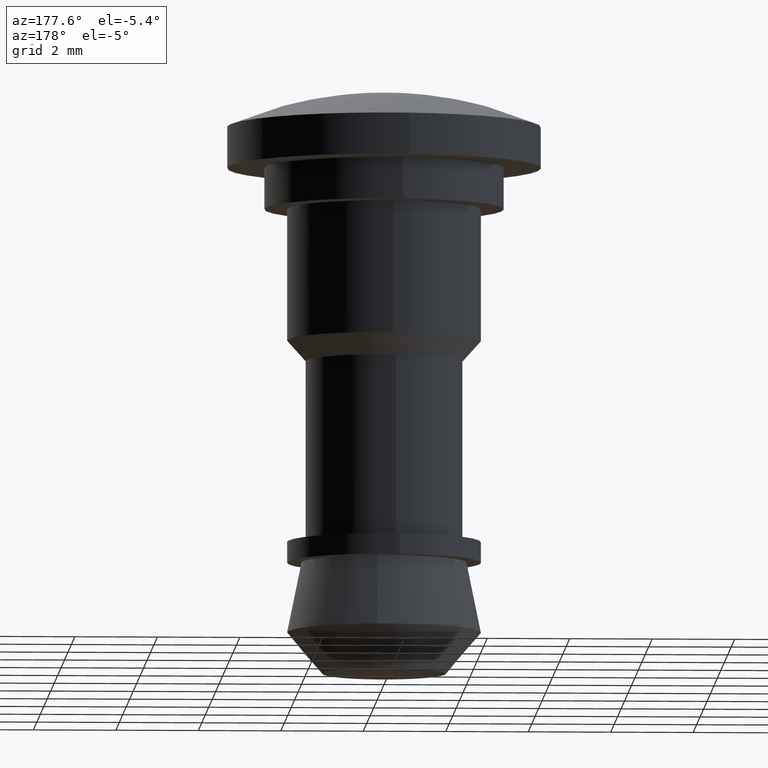
[diagram: clean part render]
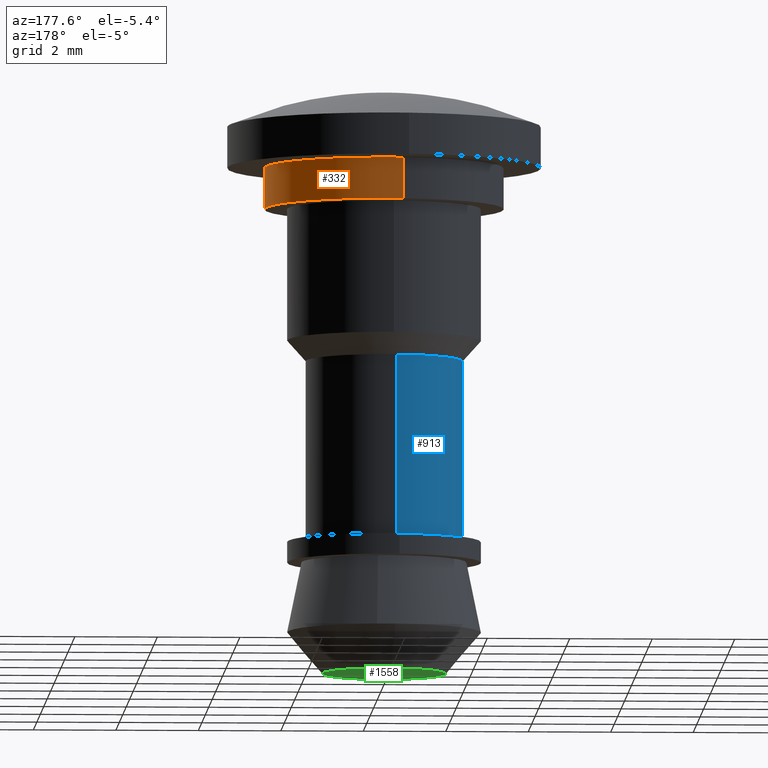
[diagram: same view with three faces highlighted in distinct colors, each labeled with its STEP entity id]
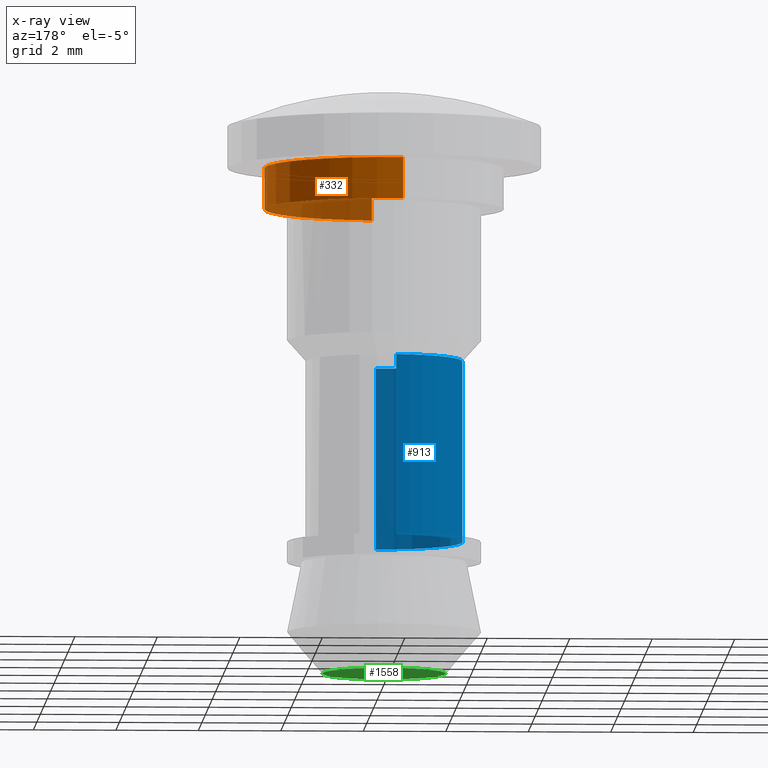
[diagram: x-ray of the same camera — body ghosted, the three highlighted faces saturated]
A machine part, auxiliary view with three faces highlighted in distinct colors.
The next image is the same camera in x-ray (body ghosted, the three faces saturated) — at least one of them is partly hidden behind the body in this view.
Their STEP definitions:

[orange] entity #332 — the highlighted face is a freeform B-spline surface patch.
#230=CARTESIAN_POINT('',(-0.342299280504600,2.879727626454632,1.025000000000000));
#231=CARTESIAN_POINT('',(-0.259882713050135,2.889524084800957,1.025000000000000));
#232=CARTESIAN_POINT('',(-0.177040764651085,2.894590915423414,1.025000000000000));
#233=CARTESIAN_POINT('',(2.717550150772328,3.071631680074499,1.025000000000000));
#234=CARTESIAN_POINT('',(2.894590915423414,0.177040764651085,1.025000000000000));
#235=CARTESIAN_POINT('',(3.071631680074499,-2.717550150772328,1.025000000000000));
#236=CARTESIAN_POINT('',(0.177040764651085,-2.894590915423414,1.025000000000000));
#237=CARTESIAN_POINT('',(-0.342299280504600,2.879727626454632,-0.025625000000000));
#238=CARTESIAN_POINT('',(-0.259882713050135,2.889524084800957,-0.025625000000000));
#239=CARTESIAN_POINT('',(-0.177040764651085,2.894590915423414,-0.025625000000000));
#240=CARTESIAN_POINT('',(2.717550150772328,3.071631680074499,-0.025625000000000));
#241=CARTESIAN_POINT('',(2.894590915423414,0.177040764651085,-0.025625000000000));
#242=CARTESIAN_POINT('',(3.071631680074499,-2.717550150772328,-0.025625000000000));
#243=CARTESIAN_POINT('',(0.177040764651085,-2.894590915423414,-0.025625000000000));
#251=(BOUNDED_SURFACE()B_SPLINE_SURFACE(2,1,((#230,#237),(#231,#238),(#232,#239),(#233,#240),(#234,#241),(#235,#242),(#236,#243)),.UNSPECIFIED.,.F.,.F.,.U.)B_SPLINE_SURFACE_WITH_KNOTS((3,2,2,3),(2,2),(0.0,0.192195092941116,4.997072416469019,9.801949739996921),(0.0,1.0),.UNSPECIFIED.)GEOMETRIC_REPRESENTATION_ITEM()RATIONAL_B_SPLINE_SURFACE(((0.977505800795127,0.977505800795127),(0.988284271247462,0.988284271247462),(1.0,1.0),(0.707106781186548,0.707106781186548),(1.0,1.0),(0.707106781186548,0.707106781186548),(1.0,1.0)))REPRESENTATION_ITEM('')SURFACE());
#252=CARTESIAN_POINT('',(-0.342299040128431,2.879727655026963,0.999999999999999));
#253=VERTEX_POINT('',#252);
#254=CARTESIAN_POINT('',(2.900000000000000,0.0,1.0));
#255=VERTEX_POINT('',#254);
#256=CARTESIAN_POINT('',(-0.342299040128431,2.879727655026963,0.999999999999999));
#257=CARTESIAN_POINT('',(-0.171749704073148,2.900000000000000,1.0));
#258=CARTESIAN_POINT('',(0.0,2.900000000000000,1.0));
#259=CARTESIAN_POINT('',(2.900000000000000,2.900000000000000,1.0));
#260=CARTESIAN_POINT('',(2.900000000000000,0.0,1.0));
#268=(BOUNDED_CURVE()B_SPLINE_CURVE(2,(#256,#257,#258,#259,#260),.UNSPECIFIED.,.F.,.U.)B_SPLINE_CURVE_WITH_KNOTS((3,2,3),(0.229562501729670,0.250000000000000,0.500000000000000),.UNSPECIFIED.)CURVE()GEOMETRIC_REPRESENTATION_ITEM()RATIONAL_B_SPLINE_CURVE((0.956026809488538,0.976055981388435,1.0,0.707106781186548,1.0))REPRESENTATION_ITEM(''));
#269=EDGE_CURVE('',#253,#255,#268,.T.);
#270=ORIENTED_EDGE('',*,*,#269,.T.);
#271=CARTESIAN_POINT('',(0.177038406045388,-2.894591059679989,1.000000000000037));
#272=VERTEX_POINT('',#271);
#273=CARTESIAN_POINT('',(2.900000000000000,0.0,1.0));
#274=CARTESIAN_POINT('',(2.900000000000001,-2.728049821082012,1.0));
#275=CARTESIAN_POINT('',(0.177038406045388,-2.894591059679989,1.000000000000037));
#283=(BOUNDED_CURVE()B_SPLINE_CURVE(2,(#273,#274,#275),.UNSPECIFIED.,.F.,.U.)B_SPLINE_CURVE_WITH_KNOTS((3,3),(0.500000000000000,0.739333102838652),.UNSPECIFIED.)CURVE()GEOMETRIC_REPRESENTATION_ITEM()RATIONAL_B_SPLINE_CURVE((1.0,0.719603828563904,0.976072342998844))REPRESENTATION_ITEM(''));
#284=EDGE_CURVE('',#255,#272,#283,.T.);
#285=ORIENTED_EDGE('',*,*,#284,.T.);
#286=CARTESIAN_POINT('',(0.177038434490619,-2.894591057940251,5.204170E-018));
#287=VERTEX_POINT('',#286);
#288=CARTESIAN_POINT('',(0.177038406045388,-2.894591059679989,1.000000000000037));
#289=CARTESIAN_POINT('',(0.177038434490619,-2.894591057940251,5.204170E-018));
#290=QUASI_UNIFORM_CURVE('',1,(#288,#289),.UNSPECIFIED.,.F.,.U.);
#291=EDGE_CURVE('',#272,#287,#290,.T.);
#292=ORIENTED_EDGE('',*,*,#291,.T.);
#293=CARTESIAN_POINT('',(2.900000000000000,0.0,0.0));
#294=VERTEX_POINT('',#293);
#295=CARTESIAN_POINT('',(2.900000000000000,0.0,0.0));
#296=CARTESIAN_POINT('',(2.900000000000001,-2.728049794223292,0.0));
#297=CARTESIAN_POINT('',(0.177038434490618,-2.894591057940251,5.204170E-018));
#305=(BOUNDED_CURVE()B_SPLINE_CURVE(2,(#295,#296,#297),.UNSPECIFIED.,.F.,.U.)B_SPLINE_CURVE_WITH_KNOTS((3,3),(0.500000000000000,0.739333101143030),.UNSPECIFIED.)CURVE()GEOMETRIC_REPRESENTATION_ITEM()RATIONAL_B_SPLINE_CURVE((1.0,0.719603830550450,0.976072339364798))REPRESENTATION_ITEM(''));
#306=EDGE_CURVE('',#294,#287,#305,.T.);
#307=ORIENTED_EDGE('',*,*,#306,.F.);
#308=CARTESIAN_POINT('',(-0.342299043020657,2.879727654683180,-5.146464E-017));
#309=VERTEX_POINT('',#308);
#310=CARTESIAN_POINT('',(-0.342299043020657,2.879727654683180,-5.146464E-017));
#311=CARTESIAN_POINT('',(-0.171749706995950,2.900000000000000,0.0));
#312=CARTESIAN_POINT('',(0.0,2.900000000000000,0.0));
#313=CARTESIAN_POINT('',(2.900000000000000,2.900000000000000,0.0));
#314=CARTESIAN_POINT('',(2.900000000000000,0.0,0.0));
#322=(BOUNDED_CURVE()B_SPLINE_CURVE(2,(#310,#311,#312,#313,#314),.UNSPECIFIED.,.F.,.U.)B_SPLINE_CURVE_WITH_KNOTS((3,2,3),(0.229562501390196,0.250000000000000,0.500000000000000),.UNSPECIFIED.)CURVE()GEOMETRIC_REPRESENTATION_ITEM()RATIONAL_B_SPLINE_CURVE((0.956026808823156,0.976055980990717,1.0,0.707106781186548,1.0))REPRESENTATION_ITEM(''));
#323=EDGE_CURVE('',#309,#294,#322,.T.);
#324=ORIENTED_EDGE('',*,*,#323,.F.);
#325=CARTESIAN_POINT('',(-0.342299040128431,2.879727655026963,0.999999999999999));
#326=CARTESIAN_POINT('',(-0.342299043020657,2.879727654683180,-5.146464E-017));
#327=QUASI_UNIFORM_CURVE('',1,(#325,#326),.UNSPECIFIED.,.F.,.U.);
#328=EDGE_CURVE('',#253,#309,#327,.T.);
#329=ORIENTED_EDGE('',*,*,#328,.F.);
#330=EDGE_LOOP('',(#270,#285,#292,#307,#324,#329));
#331=FACE_OUTER_BOUND('',#330,.T.);
#332=ADVANCED_FACE('',(#331),#251,.T.);

[blue] entity #913 — the highlighted face is a freeform B-spline surface patch.
#650=CARTESIAN_POINT('',(-0.224262532899582,1.886718398789565,-3.700000000000013));
#651=VERTEX_POINT('',#650);
#669=CARTESIAN_POINT('',(-1.900000000000000,0.0,-3.700000000000000));
#670=VERTEX_POINT('',#669);
#671=CARTESIAN_POINT('',(-1.900000000000000,0.0,-3.700000000000000));
#672=CARTESIAN_POINT('',(-1.900000000000000,1.687533862780075,-3.700000000000000));
#673=CARTESIAN_POINT('',(-0.224262532899582,1.886718398789565,-3.700000000000013));
#681=(BOUNDED_CURVE()B_SPLINE_CURVE(2,(#671,#672,#673),.UNSPECIFIED.,.F.,.U.)B_SPLINE_CURVE_WITH_KNOTS((3,3),(0.0,0.229562698613635),.UNSPECIFIED.)CURVE()GEOMETRIC_REPRESENTATION_ITEM()RATIONAL_B_SPLINE_CURVE((1.0,0.731050569134199,0.956027195389635))REPRESENTATION_ITEM(''));
#682=EDGE_CURVE('',#670,#651,#681,.T.);
#684=CARTESIAN_POINT('',(0.115992225125437,-1.896456117000984,-3.700000000000000));
#685=VERTEX_POINT('',#684);
#686=CARTESIAN_POINT('',(0.115992225125437,-1.896456117000984,-3.700000000000000));
#687=CARTESIAN_POINT('',(0.058050250276554,-1.900000000000000,-3.700000000000001));
#688=CARTESIAN_POINT('',(0.0,-1.900000000000000,-3.700000000000000));
#689=CARTESIAN_POINT('',(-1.900000000000000,-1.900000000000000,-3.700000000000001));
#690=CARTESIAN_POINT('',(-1.900000000000000,0.0,-3.700000000000000));
#698=(BOUNDED_CURVE()B_SPLINE_CURVE(2,(#686,#687,#688,#689,#690),.UNSPECIFIED.,.F.,.U.)B_SPLINE_CURVE_WITH_KNOTS((3,2,3),(0.739332962240293,0.750000000000000,1.0),.UNSPECIFIED.)CURVE()GEOMETRIC_REPRESENTATION_ITEM()RATIONAL_B_SPLINE_CURVE((0.976072041669610,0.987502787901419,1.0,0.707106781186547,1.0))REPRESENTATION_ITEM(''));
#699=EDGE_CURVE('',#685,#670,#698,.T.);
#812=CARTESIAN_POINT('',(0.115992225125438,-1.896456117000984,-8.100000000000000));
#813=VERTEX_POINT('',#812);
#814=CARTESIAN_POINT('',(0.115992225125437,-1.896456117000984,-3.700000000000000));
#815=CARTESIAN_POINT('',(0.115992225125438,-1.896456117000984,-8.100000000000000));
#816=QUASI_UNIFORM_CURVE('',1,(#814,#815),.UNSPECIFIED.,.F.,.U.);
#817=EDGE_CURVE('',#685,#813,#816,.T.);
#834=CARTESIAN_POINT('',(-0.224262563144352,1.886718395194596,-8.100000000000000));
#835=VERTEX_POINT('',#834);
#851=CARTESIAN_POINT('',(-0.224262532899582,1.886718398789565,-3.700000000000013));
#852=CARTESIAN_POINT('',(-0.224262563144352,1.886718395194596,-8.100000000000000));
#853=QUASI_UNIFORM_CURVE('',1,(#851,#852),.UNSPECIFIED.,.F.,.U.);
#854=EDGE_CURVE('',#651,#835,#853,.T.);
#859=CARTESIAN_POINT('',(0.115992225116228,-1.896456117001547,-3.590000000000000));
#860=CARTESIAN_POINT('',(-1.780463891885319,-2.012448342117775,-3.590000000000000));
#861=CARTESIAN_POINT('',(-1.896456117001547,-0.115992225116228,-3.590000000000000));
#862=CARTESIAN_POINT('',(-2.005993773791802,1.674932632595051,-3.590000000000001));
#863=CARTESIAN_POINT('',(-0.224265045847841,1.886718100090966,-3.590000000000000));
#864=CARTESIAN_POINT('',(0.115992225116228,-1.896456117001547,-8.212750000000000));
#865=CARTESIAN_POINT('',(-1.780463891885319,-2.012448342117775,-8.212750000000000));
#866=CARTESIAN_POINT('',(-1.896456117001547,-0.115992225116228,-8.212750000000000));
#867=CARTESIAN_POINT('',(-2.005993773791802,1.674932632595051,-8.212750000000000));
#868=CARTESIAN_POINT('',(-0.224265045847841,1.886718100090966,-8.212750000000002));
#876=(BOUNDED_SURFACE()B_SPLINE_SURFACE(2,1,((#859,#864),(#860,#865),(#861,#866),(#862,#867),(#863,#868)),.UNSPECIFIED.,.F.,.F.,.U.)B_SPLINE_SURFACE_WITH_KNOTS((3,2,3),(2,2),(0.0,3.148023074035522,6.170125225109622),(0.0,4.622750000000003),.UNSPECIFIED.)GEOMETRIC_REPRESENTATION_ITEM()RATIONAL_B_SPLINE_SURFACE(((1.0,1.0),(0.707106781186548,0.707106781186548),(1.0,1.0),(0.718822509939086,0.718822509939086),(0.977505800795127,0.977505800795127)))REPRESENTATION_ITEM('')SURFACE());
#877=ORIENTED_EDGE('',*,*,#682,.T.);
#878=ORIENTED_EDGE('',*,*,#854,.T.);
#879=CARTESIAN_POINT('',(-1.900000000000000,0.0,-8.100000000000000));
#880=VERTEX_POINT('',#879);
#881=CARTESIAN_POINT('',(-1.900000000000000,0.0,-8.100000000000000));
#882=CARTESIAN_POINT('',(-1.900000000000001,1.687533835537876,-8.100000000000001));
#883=CARTESIAN_POINT('',(-0.224262563144352,1.886718395194596,-8.100000000000001));
#891=(BOUNDED_CURVE()B_SPLINE_CURVE(2,(#881,#882,#883),.UNSPECIFIED.,.F.,.U.)B_SPLINE_CURVE_WITH_KNOTS((3,3),(0.0,0.229562695904452),.UNSPECIFIED.)CURVE()GEOMETRIC_REPRESENTATION_ITEM()RATIONAL_B_SPLINE_CURVE((1.0,0.731050572308205,0.956027190079514))REPRESENTATION_ITEM(''));
#892=EDGE_CURVE('',#880,#835,#891,.T.);
#893=ORIENTED_EDGE('',*,*,#892,.F.);
#894=CARTESIAN_POINT('',(0.115992225125438,-1.896456117000984,-8.100000000000000));
#895=CARTESIAN_POINT('',(0.058050250276554,-1.900000000000000,-8.100000000000000));
#896=CARTESIAN_POINT('',(0.0,-1.900000000000000,-8.100000000000000));
#897=CARTESIAN_POINT('',(-1.900000000000000,-1.900000000000000,-8.100000000000000));
#898=CARTESIAN_POINT('',(-1.900000000000000,0.0,-8.100000000000000));
#906=(BOUNDED_CURVE()B_SPLINE_CURVE(2,(#894,#895,#896,#897,#898),.UNSPECIFIED.,.F.,.U.)B_SPLINE_CURVE_WITH_KNOTS((3,2,3),(0.739332962240292,0.750000000000000,1.0),.UNSPECIFIED.)CURVE()GEOMETRIC_REPRESENTATION_ITEM()RATIONAL_B_SPLINE_CURVE((0.976072041669610,0.987502787901418,1.0,0.707106781186547,1.0))REPRESENTATION_ITEM(''));
#907=EDGE_CURVE('',#813,#880,#906,.T.);
#908=ORIENTED_EDGE('',*,*,#907,.F.);
#909=ORIENTED_EDGE('',*,*,#817,.F.);
#910=ORIENTED_EDGE('',*,*,#699,.T.);
#911=EDGE_LOOP('',(#877,#878,#893,#908,#909,#910));
#912=FACE_OUTER_BOUND('',#911,.T.);
#913=ADVANCED_FACE('',(#912),#876,.T.);

[green] entity #1558 — the highlighted face is a freeform B-spline surface patch.
#1339=CARTESIAN_POINT('',(-0.117680797706709,1.495276308867430,-11.299999999996460));
#1340=VERTEX_POINT('',#1339);
#1346=CARTESIAN_POINT('',(-1.499900000000018,0.0,-11.300000000000001));
#1347=VERTEX_POINT('',#1346);
#1348=CARTESIAN_POINT('',(-1.499900000000018,0.0,-11.300000000000001));
#1349=CARTESIAN_POINT('',(-1.499900000000018,1.386493298393002,-11.299999999999999));
#1350=CARTESIAN_POINT('',(-0.117680797706709,1.495276308867430,-11.299999999996452));
#1358=(BOUNDED_CURVE()B_SPLINE_CURVE(2,(#1348,#1349,#1350),.UNSPECIFIED.,.F.,.U.)B_SPLINE_CURVE_WITH_KNOTS((3,3),(0.0,0.236331300627201),.UNSPECIFIED.)CURVE()GEOMETRIC_REPRESENTATION_ITEM()RATIONAL_B_SPLINE_CURVE((1.0,0.723120658611718,0.969723356160199))REPRESENTATION_ITEM(''));
#1359=EDGE_CURVE('',#1347,#1340,#1358,.T.);
#1361=CARTESIAN_POINT('',(0.117680797706709,-1.495276308867430,-11.299999999996450));
#1362=VERTEX_POINT('',#1361);
#1363=CARTESIAN_POINT('',(0.117680797706709,-1.495276308867430,-11.299999999996452));
#1364=CARTESIAN_POINT('',(0.058931231525193,-1.499900000000018,-11.299999999999997));
#1365=CARTESIAN_POINT('',(0.0,-1.499900000000018,-11.300000000000001));
#1366=CARTESIAN_POINT('',(-1.499900000000018,-1.499900000000018,-11.300000000000001));
#1367=CARTESIAN_POINT('',(-1.499900000000018,0.0,-11.300000000000001));
#1375=(BOUNDED_CURVE()B_SPLINE_CURVE(2,(#1363,#1364,#1365,#1366,#1367),.UNSPECIFIED.,.F.,.U.)B_SPLINE_CURVE_WITH_KNOTS((3,2,3),(0.736331300627201,0.750000000000000,1.0),.UNSPECIFIED.)CURVE()GEOMETRIC_REPRESENTATION_ITEM()RATIONAL_B_SPLINE_CURVE((0.969723356160199,0.983986122574830,1.0,0.707106781186547,1.0))REPRESENTATION_ITEM(''));
#1376=EDGE_CURVE('',#1362,#1347,#1375,.T.);
#1410=CARTESIAN_POINT('',(1.499900000000018,0.0,-11.300000000000001));
#1411=VERTEX_POINT('',#1410);
#1412=CARTESIAN_POINT('',(1.499900000000018,0.0,-11.300000000000001));
#1413=CARTESIAN_POINT('',(1.499900000000018,-1.386493298393010,-11.299999999999999));
#1414=CARTESIAN_POINT('',(0.117680797706709,-1.495276308867430,-11.299999999996459));
#1422=(BOUNDED_CURVE()B_SPLINE_CURVE(2,(#1412,#1413,#1414),.UNSPECIFIED.,.F.,.U.)B_SPLINE_CURVE_WITH_KNOTS((3,3),(0.500000000000000,0.736331300627202),.UNSPECIFIED.)CURVE()GEOMETRIC_REPRESENTATION_ITEM()RATIONAL_B_SPLINE_CURVE((1.0,0.723120658611717,0.969723356160201))REPRESENTATION_ITEM(''));
#1423=EDGE_CURVE('',#1411,#1362,#1422,.T.);
#1425=CARTESIAN_POINT('',(-0.117680797706709,1.495276308867430,-11.299999999996452));
#1426=CARTESIAN_POINT('',(-0.058931231525193,1.499900000000019,-11.299999999999997));
#1427=CARTESIAN_POINT('',(0.0,1.499900000000018,-11.300000000000001));
#1428=CARTESIAN_POINT('',(1.499900000000018,1.499900000000018,-11.300000000000001));
#1429=CARTESIAN_POINT('',(1.499900000000018,0.0,-11.300000000000001));
#1437=(BOUNDED_CURVE()B_SPLINE_CURVE(2,(#1425,#1426,#1427,#1428,#1429),.UNSPECIFIED.,.F.,.U.)B_SPLINE_CURVE_WITH_KNOTS((3,2,3),(0.236331300627201,0.250000000000000,0.500000000000000),.UNSPECIFIED.)CURVE()GEOMETRIC_REPRESENTATION_ITEM()RATIONAL_B_SPLINE_CURVE((0.969723356160199,0.983986122574830,1.0,0.707106781186547,1.0))REPRESENTATION_ITEM(''));
#1438=EDGE_CURVE('',#1340,#1411,#1437,.T.);
#1547=CARTESIAN_POINT('',(1.649740004185825,-1.649282254094939,-11.300000000000001));
#1548=CARTESIAN_POINT('',(-1.649740084646731,-1.649282254094939,-11.300000000000001));
#1549=CARTESIAN_POINT('',(1.649740004185825,1.649282254094939,-11.300000000000001));
#1550=CARTESIAN_POINT('',(-1.649740084646731,1.649282254094939,-11.300000000000001));
#1551=B_SPLINE_SURFACE_WITH_KNOTS('',1,1,((#1547,#1549),(#1548,#1550)),.UNSPECIFIED.,.F.,.F.,.U.,(2,2),(2,2),(0.0,3.299480088832556),(0.0,3.298564508189879),.UNSPECIFIED.);
#1552=ORIENTED_EDGE('',*,*,#1359,.T.);
#1553=ORIENTED_EDGE('',*,*,#1438,.T.);
#1554=ORIENTED_EDGE('',*,*,#1423,.T.);
#1555=ORIENTED_EDGE('',*,*,#1376,.T.);
#1556=EDGE_LOOP('',(#1552,#1553,#1554,#1555));
#1557=FACE_OUTER_BOUND('',#1556,.T.);
#1558=ADVANCED_FACE('',(#1557),#1551,.T.);